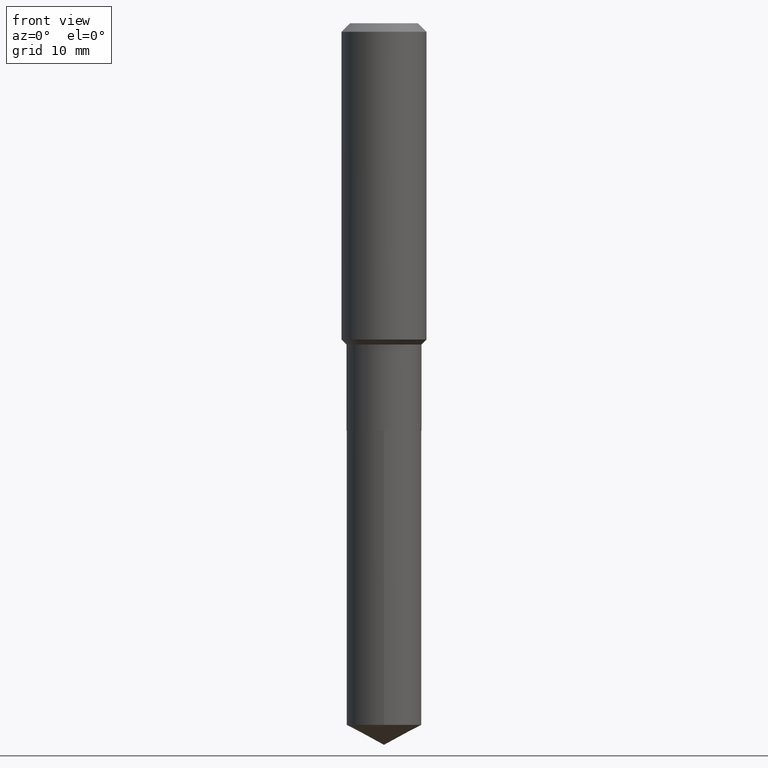
[diagram: clean part render]
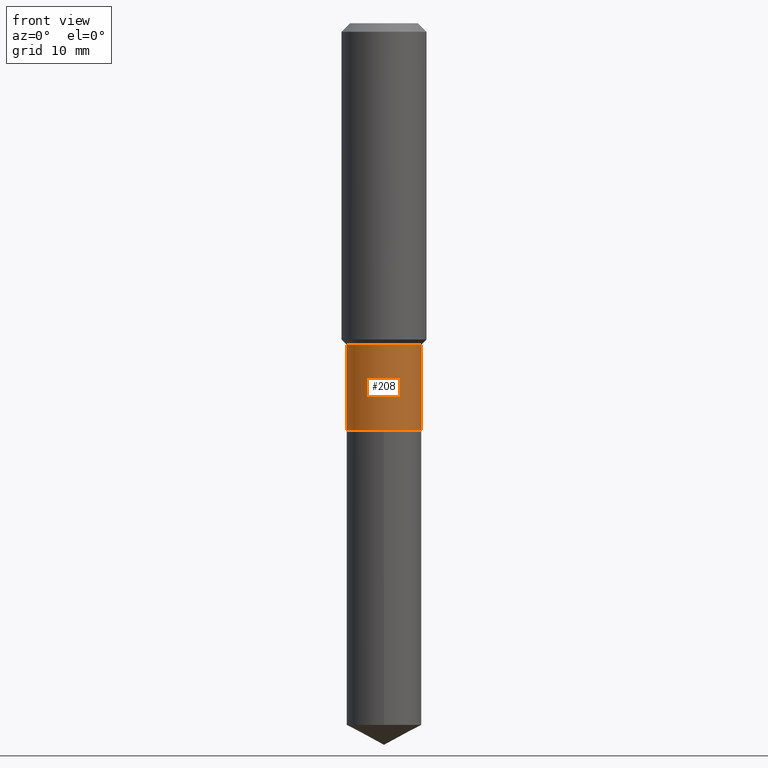
[diagram: same view with one face highlighted and labeled with its STEP entity id]
A machine part, front view. The second image highlights one B-rep face of the part: STEP entity #208.
In plain terms, the highlighted cylindrical surface (partial cylindrical patch) has radius 5.2997 mm, axis along (-0, 0, 1).
Its self-contained STEP definition (entity closure, byte-faithful):
#5 = CARTESIAN_POINT ( 'NONE',  ( 0.2086499999999999466, -7.698716352149130505E-15, -1.787699999999999845 ) ) ;
#7 = VECTOR ( 'NONE', #408, 39.37007874015748143 ) ;
#8 = CARTESIAN_POINT ( 'NONE',  ( 0.000000000000000000, 0.000000000000000000, 0.000000000000000000 ) ) ;
#23 = VERTEX_POINT ( 'NONE', #231 ) ;
#46 = DIRECTION ( 'NONE',  ( 1.000000000000000000, -6.982962677686266711E-15, 4.876176775795935793E-29 ) ) ;
#58 = EDGE_LOOP ( 'NONE', ( #133, #212, #372, #290 ) ) ;
#77 = CIRCLE ( 'NONE', #349, 0.2086500000000000021 ) ;
#83 = VECTOR ( 'NONE', #115, 39.37007874015748143 ) ;
#95 = DIRECTION ( 'NONE',  ( 1.000000000000000000, -6.982962677686267499E-15, 0.000000000000000000 ) ) ;
#103 = VERTEX_POINT ( 'NONE', #196 ) ;
#115 = DIRECTION ( 'NONE',  ( -2.445468806185136877E-29, 3.491481338843145188E-15, 1.000000000000000000 ) ) ;
#133 = ORIENTED_EDGE ( 'NONE', *, *, #226, .F. ) ;
#136 = LINE ( 'NONE', #252, #7 ) ;
#159 = DIRECTION ( 'NONE',  ( -2.445468806185136597E-29, 3.491481338843145583E-15, 1.000000000000000000 ) ) ;
#172 = CARTESIAN_POINT ( 'NONE',  ( 4.371764584817168227E-29, -6.241721189449890773E-15, -1.787699999999999845 ) ) ;
#193 = CIRCLE ( 'NONE', #223, 0.2086499999999999466 ) ;
#196 = CARTESIAN_POINT ( 'NONE',  ( -0.2086500000000000021, -5.596081848207143663E-15, -2.267100000000000115 ) ) ;
#208 = ADVANCED_FACE ( 'NONE', ( #401 ), #357, .T. ) ;
#212 = ORIENTED_EDGE ( 'NONE', *, *, #406, .T. ) ;
#213 = CARTESIAN_POINT ( 'NONE',  ( -0.2086499999999999466, -5.596081848207143663E-15, -1.787699999999999845 ) ) ;
#218 = DIRECTION ( 'NONE',  ( -2.445468806185136597E-29, 3.491481338843145583E-15, 1.000000000000000000 ) ) ;
#223 = AXIS2_PLACEMENT_3D ( 'NONE', #172, #327, #95 ) ;
#226 = EDGE_CURVE ( 'NONE', #103, #417, #316, .T. ) ;
#231 = CARTESIAN_POINT ( 'NONE',  ( 0.2086500000000000021, -9.372532505990534391E-15, -2.267100000000000115 ) ) ;
#252 = CARTESIAN_POINT ( 'NONE',  ( 0.2086499999999999744, -1.456995162699239338E-15, 1.017414284269821845E-29 ) ) ;
#259 = CARTESIAN_POINT ( 'NONE',  ( 5.544122330502323530E-29, -7.915537343291296237E-15, -2.267100000000000115 ) ) ;
#275 = AXIS2_PLACEMENT_3D ( 'NONE', #8, #159, #46 ) ;
#290 = ORIENTED_EDGE ( 'NONE', *, *, #453, .F. ) ;
#316 = LINE ( 'NONE', #465, #83 ) ;
#327 = DIRECTION ( 'NONE',  ( -2.445468806185136597E-29, 3.491481338843145583E-15, 1.000000000000000000 ) ) ;
#340 = DIRECTION ( 'NONE',  ( 1.000000000000000000, -6.982962677686265922E-15, 0.000000000000000000 ) ) ;
#349 = AXIS2_PLACEMENT_3D ( 'NONE', #259, #218, #340 ) ;
#357 = CYLINDRICAL_SURFACE ( 'NONE', #275, 0.2086499999999999744 ) ;
#372 = ORIENTED_EDGE ( 'NONE', *, *, #462, .T. ) ;
#401 = FACE_OUTER_BOUND ( 'NONE', #58, .T. ) ;
#406 = EDGE_CURVE ( 'NONE', #103, #23, #77, .T. ) ;
#408 = DIRECTION ( 'NONE',  ( -2.445468806185136877E-29, 3.491481338843145188E-15, 1.000000000000000000 ) ) ;
#417 = VERTEX_POINT ( 'NONE', #213 ) ;
#453 = EDGE_CURVE ( 'NONE', #417, #471, #193, .T. ) ;
#462 = EDGE_CURVE ( 'NONE', #23, #471, #136, .T. ) ;
#465 = CARTESIAN_POINT ( 'NONE',  ( -0.2086499999999999744, 1.482547418163448856E-15, -1.026335806581685820E-29 ) ) ;
#471 = VERTEX_POINT ( 'NONE', #5 ) ;